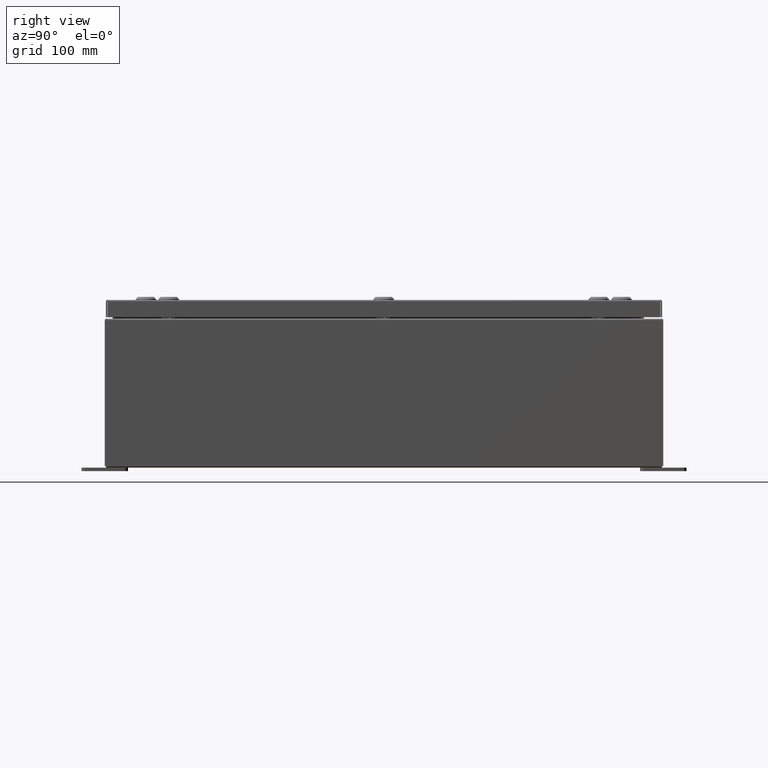
[diagram: clean part render]
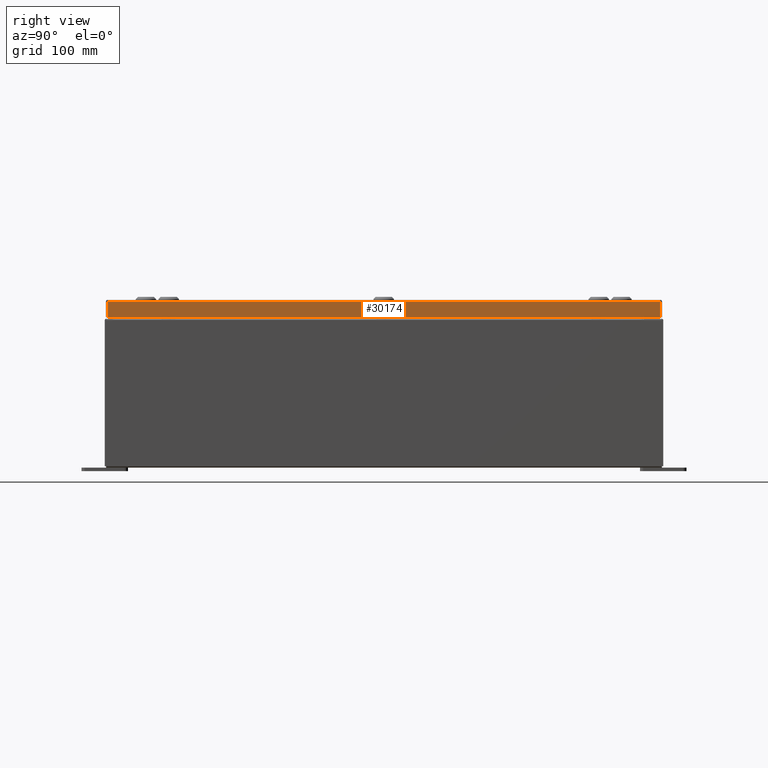
[diagram: same view with one face highlighted and labeled with its STEP entity id]
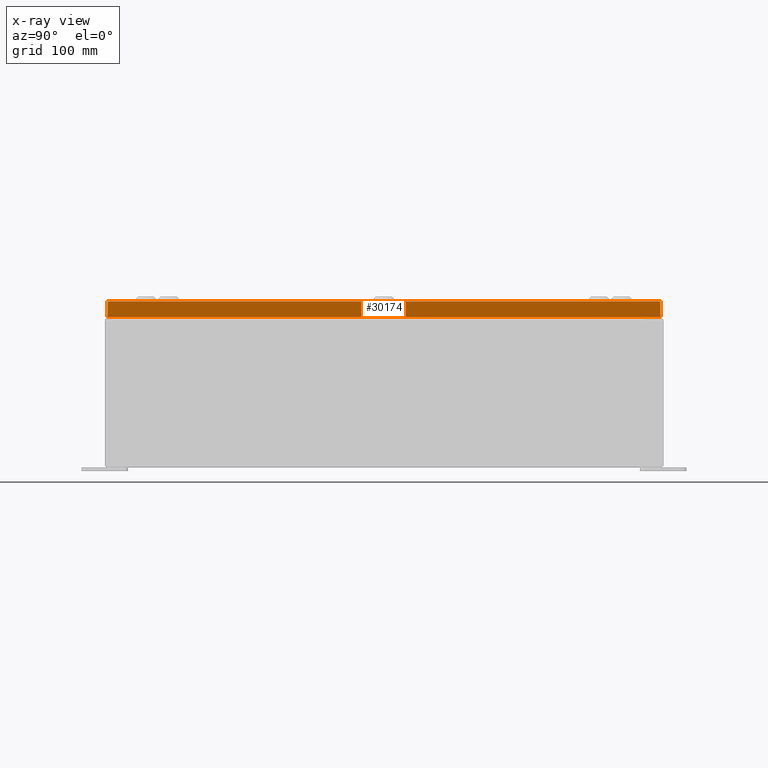
[diagram: x-ray of the same camera — body ghosted, the highlighted face saturated]
A machine part, right view. The second image highlights one B-rep face of the part: STEP entity #30174.
The next image is the same camera in x-ray: the body ghosted, the highlighted face saturated — about 0% of this face is hidden behind the body in this view.
In plain terms, the highlighted planar face has unit normal (1, 0, 0).
Its self-contained STEP definition (entity closure, byte-faithful):
#174 = VECTOR ( 'NONE', #57855, 39.37007874015748100 ) ;
#1092 = ORIENTED_EDGE ( 'NONE', *, *, #59067, .T. ) ;
#1353 = DIRECTION ( 'NONE',  ( 2.532419924601866100E-015, 0.0000000000000000000, -1.000000000000000000 ) ) ;
#1363 = VECTOR ( 'NONE', #18927, 39.37007874015748100 ) ;
#3666 = ORIENTED_EDGE ( 'NONE', *, *, #63745, .T. ) ;
#7851 = CARTESIAN_POINT ( 'NONE',  ( 9.937499999999998200, 14.84865786437627100, 1.291143603374148100E-013 ) ) ;
#7862 = CARTESIAN_POINT ( 'NONE',  ( 9.937499999999998200, 0.0000000000000000000, -0.08770000000000008300 ) ) ;
#8210 = CARTESIAN_POINT ( 'NONE',  ( 9.937500000000000000, -14.84865786437625900, -0.9376999999999997600 ) ) ;
#11894 = CARTESIAN_POINT ( 'NONE',  ( 9.937500000000000000, 14.84865786437627800, -0.9376999999999997600 ) ) ;
#12810 = DIRECTION ( 'NONE',  ( -2.532419924601866100E-015, -6.982962677686265900E-015, 1.000000000000000000 ) ) ;
#16002 = FACE_OUTER_BOUND ( 'NONE', #31843, .T. ) ;
#18927 = DIRECTION ( 'NONE',  ( 0.0000000000000000000, -1.000000000000000000, 0.0000000000000000000 ) ) ;
#21834 = ORIENTED_EDGE ( 'NONE', *, *, #57246, .F. ) ;
#23197 = CARTESIAN_POINT ( 'NONE',  ( 9.937499999999998200, -14.84865786437626400, -0.07469999999999980800 ) ) ;
#29441 = VERTEX_POINT ( 'NONE', #8210 ) ;
#29653 = LINE ( 'NONE', #7851, #54423 ) ;
#30174 = ADVANCED_FACE ( 'NONE', ( #16002 ), #50744, .T. ) ;
#30712 = VECTOR ( 'NONE', #37541, 39.37007874015748100 ) ;
#31033 = DIRECTION ( 'NONE',  ( 1.000000000000000000, 0.0000000000000000000, 2.532419924601866100E-015 ) ) ;
#31843 = EDGE_LOOP ( 'NONE', ( #58126, #21834, #3666, #1092 ) ) ;
#31977 = CARTESIAN_POINT ( 'NONE',  ( 9.937499999999998200, 14.84865786437626900, -0.08770000000000008300 ) ) ;
#35645 = CARTESIAN_POINT ( 'NONE',  ( 9.937499999999998200, -14.84865786437626400, -0.08770000000000008300 ) ) ;
#37541 = DIRECTION ( 'NONE',  ( 0.0000000000000000000, -1.000000000000000000, 0.0000000000000000000 ) ) ;
#38900 = CARTESIAN_POINT ( 'NONE',  ( 9.937500000000000000, -14.93749999999999500, -0.9376999999999997600 ) ) ;
#39342 = LINE ( 'NONE', #38900, #1363 ) ;
#43858 = LINE ( 'NONE', #7862, #30712 ) ;
#46160 = VERTEX_POINT ( 'NONE', #35645 ) ;
#50482 = AXIS2_PLACEMENT_3D ( 'NONE', #60738, #31033, #1353 ) ;
#50744 = PLANE ( 'NONE',  #50482 ) ;
#51339 = LINE ( 'NONE', #23197, #174 ) ;
#54423 = VECTOR ( 'NONE', #12810, 39.37007874015748100 ) ;
#56145 = VERTEX_POINT ( 'NONE', #11894 ) ;
#57246 = EDGE_CURVE ( 'NONE', #56145, #29441, #39342, .T. ) ;
#57855 = DIRECTION ( 'NONE',  ( -2.532419924601866100E-015, -6.982962677686265900E-015, 1.000000000000000000 ) ) ;
#58126 = ORIENTED_EDGE ( 'NONE', *, *, #63845, .F. ) ;
#59067 = EDGE_CURVE ( 'NONE', #60277, #46160, #43858, .T. ) ;
#60277 = VERTEX_POINT ( 'NONE', #31977 ) ;
#60738 = CARTESIAN_POINT ( 'NONE',  ( 9.937499999999998200, 0.0000000000000000000, 2.542673665674262200E-014 ) ) ;
#63745 = EDGE_CURVE ( 'NONE', #56145, #60277, #29653, .T. ) ;
#63845 = EDGE_CURVE ( 'NONE', #29441, #46160, #51339, .T. ) ;